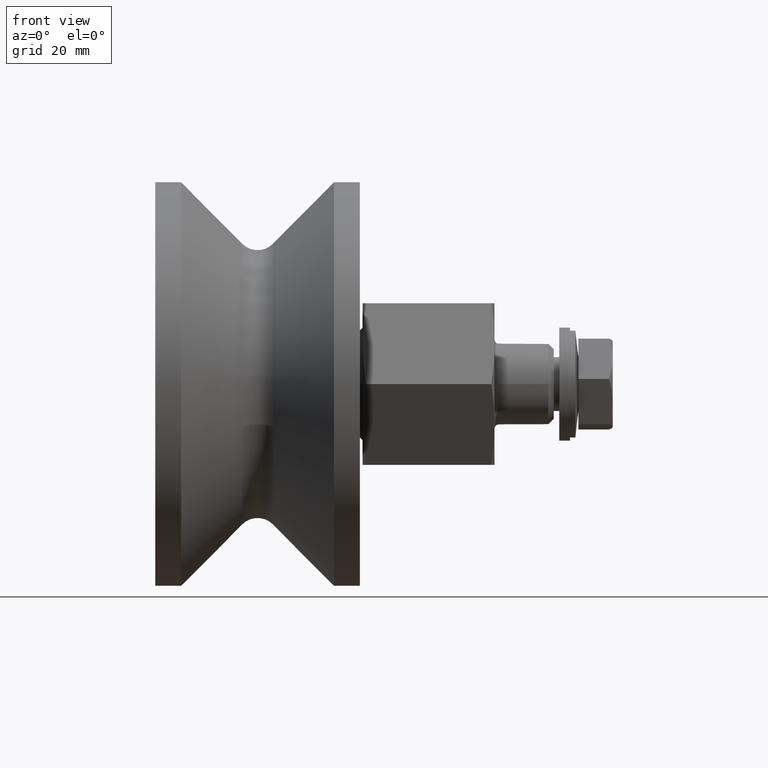
[diagram: clean part render]
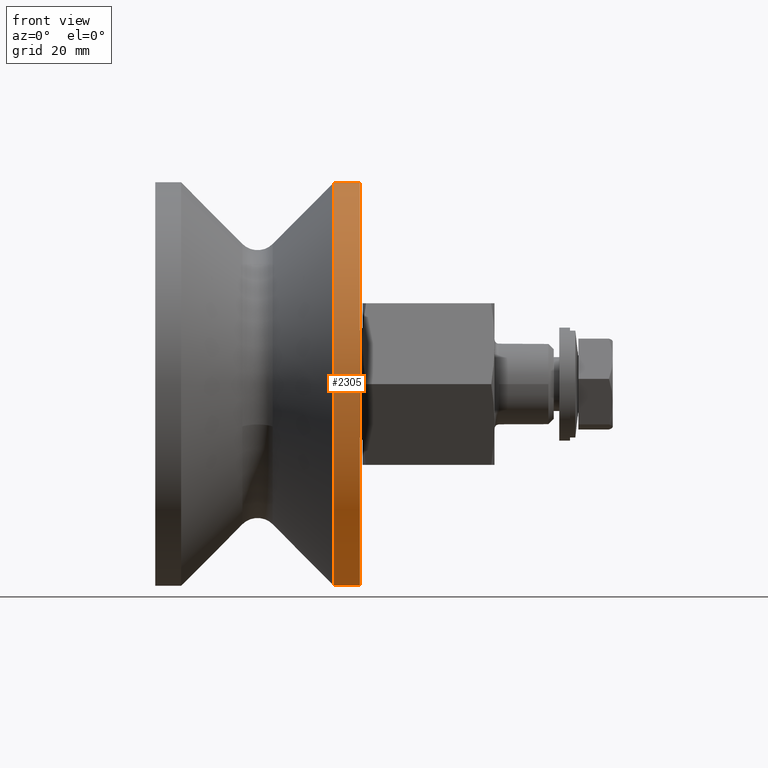
[diagram: same view with one face highlighted and labeled with its STEP entity id]
A machine part, front view. The second image highlights one B-rep face of the part: STEP entity #2305.
In plain terms, the highlighted cylindrical surface (bore or boss wall) has radius 37.5 mm, axis along (-1, -0, -0).
Its self-contained STEP definition (entity closure, byte-faithful):
#348=LINE('',#3936,#436);
#436=VECTOR('',#3183,37.5);
#495=CYLINDRICAL_SURFACE('',#2725,37.5);
#560=FACE_OUTER_BOUND('',#705,.T.);
#705=EDGE_LOOP('',(#1777,#1778,#1779,#1780));
#867=CIRCLE('',#2714,37.5);
#874=CIRCLE('',#2726,37.5);
#1046=VERTEX_POINT('',#3912);
#1053=VERTEX_POINT('',#3934);
#1314=EDGE_CURVE('',#1046,#1046,#867,.T.);
#1324=EDGE_CURVE('',#1053,#1053,#874,.T.);
#1325=EDGE_CURVE('',#1053,#1046,#348,.T.);
#1777=ORIENTED_EDGE('',*,*,#1324,.F.);
#1778=ORIENTED_EDGE('',*,*,#1325,.T.);
#1779=ORIENTED_EDGE('',*,*,#1314,.T.);
#1780=ORIENTED_EDGE('',*,*,#1325,.F.);
#2305=ADVANCED_FACE('',(#560),#495,.T.);
#2714=AXIS2_PLACEMENT_3D('',#3913,#3154,#3155);
#2725=AXIS2_PLACEMENT_3D('',#3933,#3179,#3180);
#2726=AXIS2_PLACEMENT_3D('',#3935,#3181,#3182);
#3154=DIRECTION('center_axis',(1.,0.,0.));
#3155=DIRECTION('ref_axis',(0.,1.,0.));
#3179=DIRECTION('center_axis',(1.,0.,0.));
#3180=DIRECTION('ref_axis',(0.,1.,0.));
#3181=DIRECTION('center_axis',(1.,0.,0.));
#3182=DIRECTION('ref_axis',(0.,1.,0.));
#3183=DIRECTION('',(-1.,0.,0.));
#3912=CARTESIAN_POINT('',(-17.,-37.5,-4.59242549680258E-15));
#3913=CARTESIAN_POINT('Origin',(-17.,0.,0.));
#3933=CARTESIAN_POINT('Origin',(-14.6,0.,0.));
#3934=CARTESIAN_POINT('',(-12.2,-37.5,-4.59242549680258E-15));
#3935=CARTESIAN_POINT('Origin',(-12.2,0.,0.));
#3936=CARTESIAN_POINT('',(-14.6,-37.5,-4.59242549680258E-15));